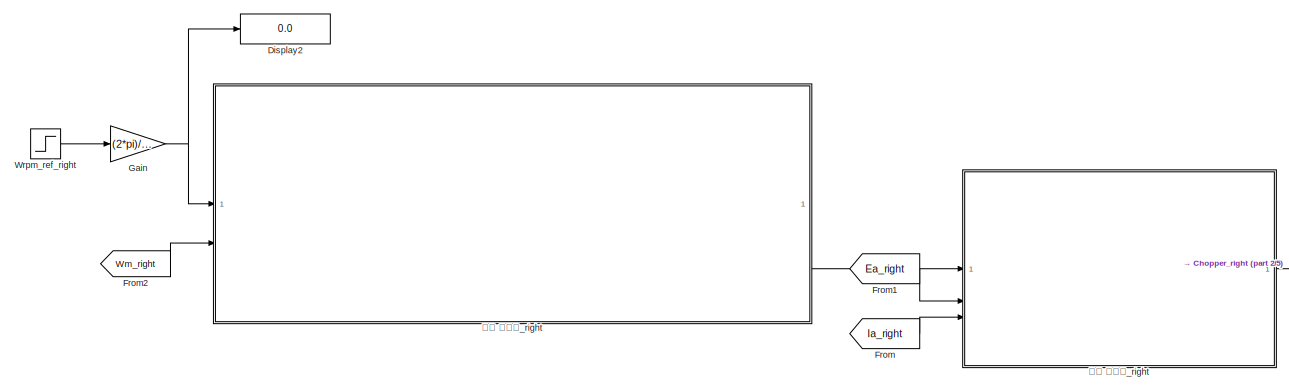
[diagram: root canvas - part 1/5, top left region]
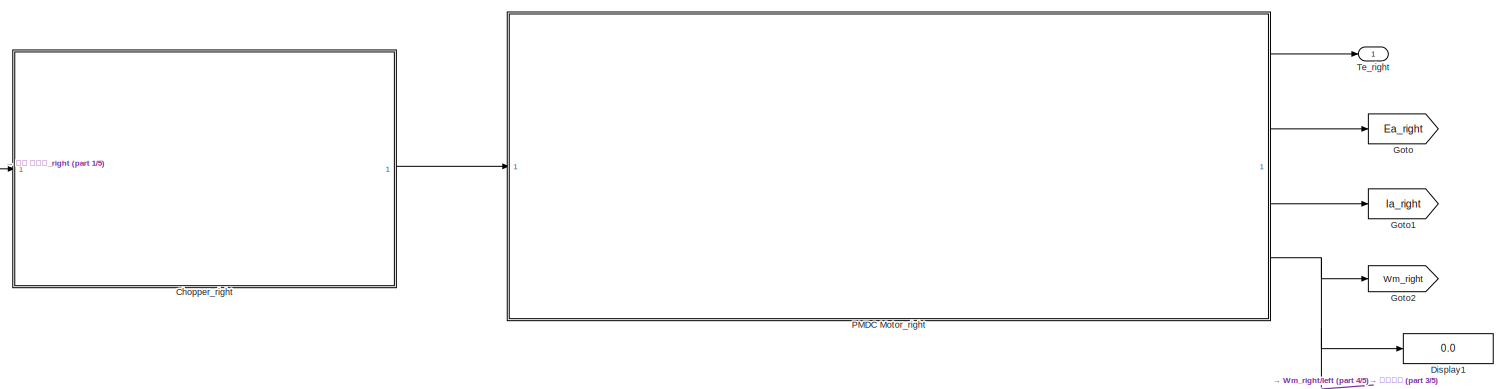
[diagram: root canvas - part 2/5, top center region]
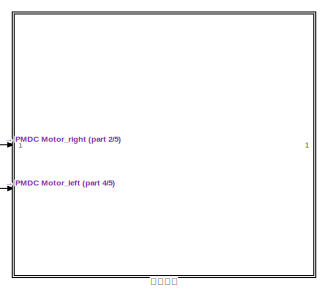
[diagram: root canvas - part 3/5, middle right region]
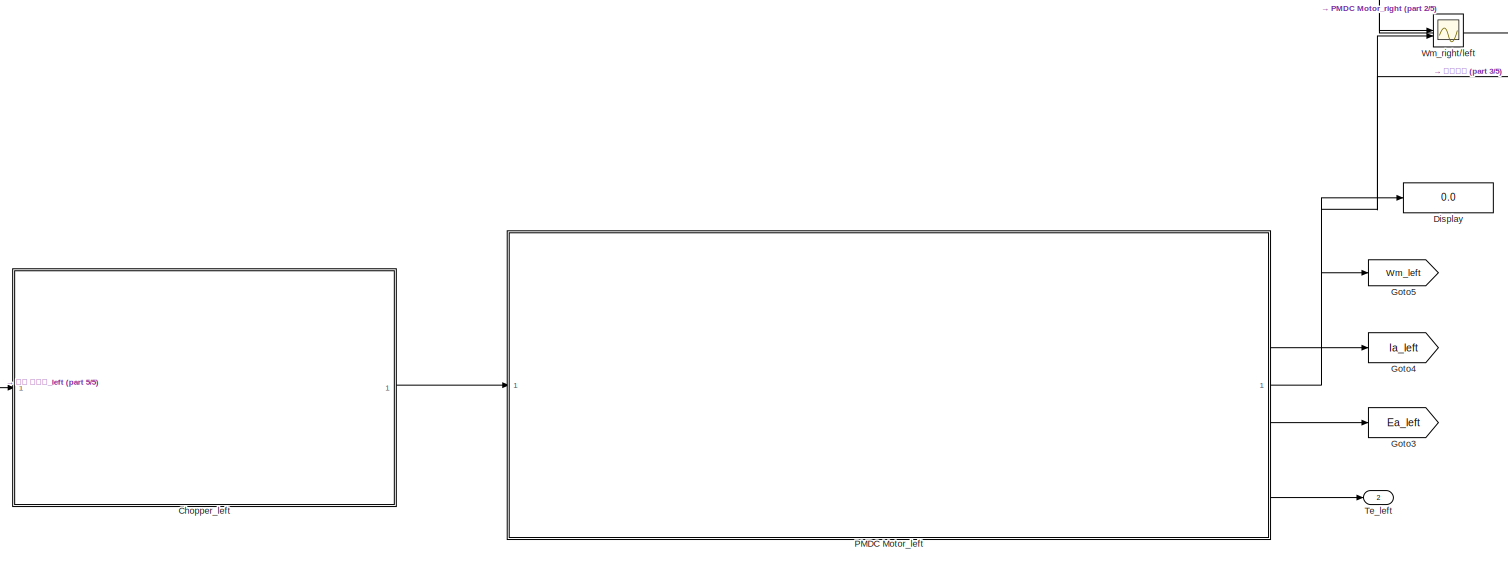
[diagram: root canvas - part 4/5, bottom center region]
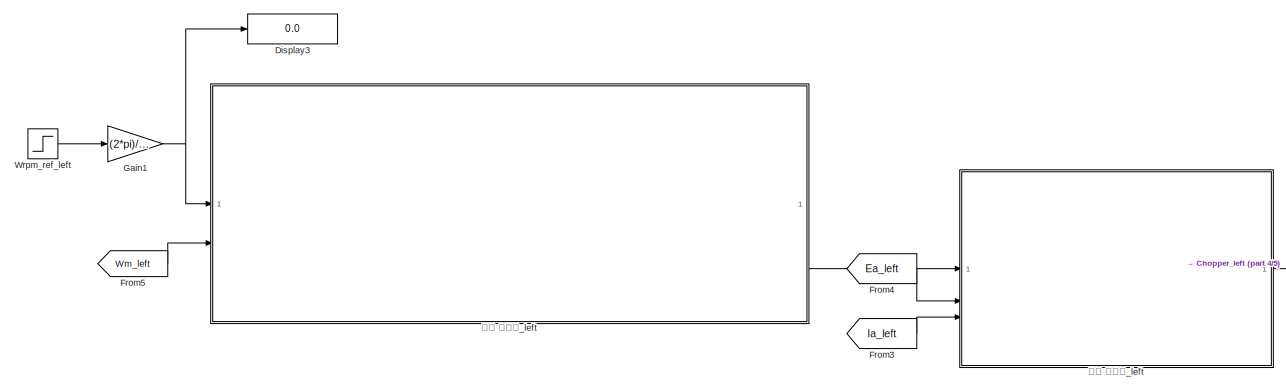
[diagram: root canvas - part 5/5, bottom left region]
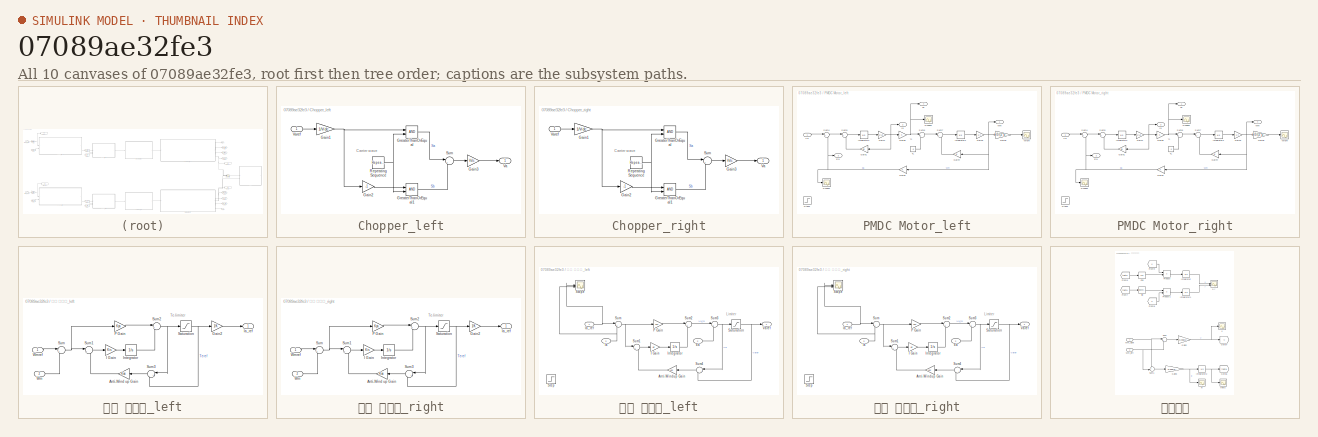
[diagram: thumbnail index - all 10 canvases of the model, root first then tree order]
MODEL slx_07089ae32fe3
KIND model
CONFIG AbsTol = auto
CONFIG EnableMultiTasking = off
CONFIG FixedStep = auto
CONFIG InitFcn = clear\nclc\n\nPower = 3336;\nVdc = 140;\nVa_rated = 140;\nIa_rated = 25;\nWm_rated = 3000*2*pi/60;\nTe_rated = Power/Wm_rated;\n\nRa = 0.26;\nLa = 1.7e-3;\nJ = 0.00252;\nB = 0;\n\nK = Te_rated/Ia_rated;\n\nWcc=500*2*pi;\nWcs=30*2*pi;\n\nKpc=La*Wcc;\nKic=Ra*Wcc;\nKac=1/Kpc;\n\nKps=(J*Wcs)/K;\nKis=(J*(Wcs)^2)/5*K;\nKas=1/Kps;\n
CONFIG MaxStep = auto
CONFIG MinStep = auto
CONFIG RelTol = 1e-4
CONFIG SampleTimeConstraint = Unconstrained
CONFIG SolverName = VariableStepAuto
CONFIG StartTime = 0.0
CONFIG StopTime = 0.2
BLOCK [SubSystem] Chopper_left
BLOCK [Gain] Chopper_left/Gain1
  Gain = 1/Vdc
BLOCK [Gain] Chopper_left/Gain2
  Gain = -1
BLOCK [Gain] Chopper_left/Gain3
  Gain = Vdc
BLOCK [RelationalOperator] Chopper_left/GreaterThanOrEqual
  InputSameDT = off
  OutDataTypeStr = boolean
  RndMeth = Simplest
BLOCK [RelationalOperator] Chopper_left/GreaterThanOrEqual1
  InputSameDT = off
  OutDataTypeStr = boolean
  RndMeth = Simplest
BLOCK [Reference] Chopper_left/Repeating Sequence  REF=simulink/Sources/Repeating
Sequence
  SourceBlock = simulink/Sources/Repeating\nSequence
  SourceType = Repeating table
BLOCK [Sum] Chopper_left/Sum
  Inputs = |+-
BLOCK [Outport] Chopper_left/Va
BLOCK [Inport] Chopper_left/Varef
BLOCK [SubSystem] Chopper_right
BLOCK [Gain] Chopper_right/Gain1
  Gain = 1/Vdc
BLOCK [Gain] Chopper_right/Gain2
  Gain = -1
BLOCK [Gain] Chopper_right/Gain3
  Gain = Vdc
BLOCK [RelationalOperator] Chopper_right/GreaterThanOrEqual
  InputSameDT = off
  OutDataTypeStr = boolean
  RndMeth = Simplest
BLOCK [RelationalOperator] Chopper_right/GreaterThanOrEqual1
  InputSameDT = off
  OutDataTypeStr = boolean
  RndMeth = Simplest
BLOCK [Reference] Chopper_right/Repeating Sequence  REF=simulink/Sources/Repeating
Sequence
  SourceBlock = simulink/Sources/Repeating\nSequence
  SourceType = Repeating table
BLOCK [Sum] Chopper_right/Sum
  Inputs = |+-
BLOCK [Outport] Chopper_right/Va
BLOCK [Inport] Chopper_right/Varef
BLOCK [Display] Display
  Decimation = 1
BLOCK [Display] Display1
  Decimation = 1
BLOCK [Display] Display2
  Decimation = 1
BLOCK [Display] Display3
  Decimation = 1
BLOCK [From] From
  GotoTag = Ia_right
BLOCK [From] From1
  GotoTag = Ea_right
BLOCK [From] From2
  GotoTag = Wm_right
BLOCK [From] From3
  GotoTag = Ia_left
BLOCK [From] From4
  GotoTag = Ea_left
BLOCK [From] From5
  GotoTag = Wm_left
BLOCK [Gain] Gain
  Gain = (2*pi)/60
BLOCK [Gain] Gain1
  Gain = (2*pi)/60
BLOCK [Goto] Goto
  GotoTag = Ea_right
BLOCK [Goto] Goto1
  GotoTag = Ia_right
BLOCK [Goto] Goto2
  GotoTag = Wm_right
BLOCK [Goto] Goto3
  GotoTag = Ea_left
BLOCK [Goto] Goto4
  GotoTag = Ia_left
BLOCK [Goto] Goto5
  GotoTag = Wm_left
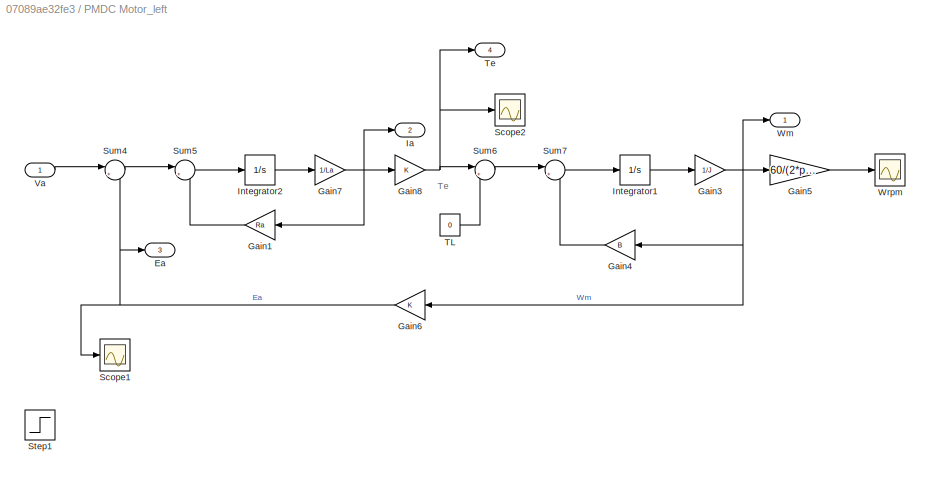
BLOCK [SubSystem] PMDC Motor_left
BLOCK [Outport] PMDC Motor_left/Ea
  Port = 3
BLOCK [Gain] PMDC Motor_left/Gain1
  Gain = Ra
  NameLocation = top
BLOCK [Gain] PMDC Motor_left/Gain3
  Gain = 1/J
BLOCK [Gain] PMDC Motor_left/Gain4
  Gain = B
  NameLocation = top
BLOCK [Gain] PMDC Motor_left/Gain5
  Gain = 60/(2*pi)
BLOCK [Gain] PMDC Motor_left/Gain6
  Gain = K
  NameLocation = top
BLOCK [Gain] PMDC Motor_left/Gain7
  Gain = 1/La
BLOCK [Gain] PMDC Motor_left/Gain8
  Gain = K
BLOCK [Outport] PMDC Motor_left/Ia
  Port = 2
BLOCK [Integrator] PMDC Motor_left/Integrator1
BLOCK [Integrator] PMDC Motor_left/Integrator2
BLOCK [Scope] PMDC Motor_left/Scope1
  Floating = off
  NumInputPorts = 1
  ScopeSpecificationString = Simulink.scopes.TimeScopeBlockCfg('CurrentConfiguration', extmgr.ConfigurationSet(extmgr.Configuration('Core','General UI',true),extmgr.Configuration('Core','Source UI',true),extmgr.Configuration('Sources','WiredSimulink',true,'DataLoggingVariableName','ScopeData2'),extmgr.Configuration('Visuals','Time Domain',true,'SerializedDisplays',{struct('MinYLimReal','-14.10394','MaxYLimReal','126.9355','YL...<+1456ch>
BLOCK [Scope] PMDC Motor_left/Scope2
  Floating = off
  NumInputPorts = 1
  ScopeSpecificationString = Simulink.scopes.TimeScopeBlockCfg('CurrentConfiguration', extmgr.ConfigurationSet(extmgr.Configuration('Core','General UI',true),extmgr.Configuration('Core','Source UI',true),extmgr.Configuration('Sources','WiredSimulink',true,'DataLoggingVariableName','ScopeData3'),extmgr.Configuration('Visuals','Time Domain',true,'SerializedDisplays',{struct('MinYLimReal','-4.21462','MaxYLimReal','17.83937','YLa...<+1457ch>
BLOCK [Step] PMDC Motor_left/Step1
  After = 70
  SampleTime = 0
  Time = 0.05
BLOCK [Sum] PMDC Motor_left/Sum4
  Inputs = |+-
BLOCK [Sum] PMDC Motor_left/Sum5
  Inputs = |+-
BLOCK [Sum] PMDC Motor_left/Sum6
  Inputs = |+-
BLOCK [Sum] PMDC Motor_left/Sum7
  Inputs = |+-
BLOCK [Constant] PMDC Motor_left/TL
  Value = 0
BLOCK [Outport] PMDC Motor_left/Te
  Port = 4
BLOCK [Inport] PMDC Motor_left/Va
BLOCK [Outport] PMDC Motor_left/Wm
BLOCK [Scope] PMDC Motor_left/Wrpm
  Floating = off
  NumInputPorts = 1
  ScopeSpecificationString = Simulink.scopes.TimeScopeBlockCfg('CurrentConfiguration', extmgr.ConfigurationSet(extmgr.Configuration('Core','General UI',true),extmgr.Configuration('Core','Source UI',true),extmgr.Configuration('Sources','WiredSimulink',true),extmgr.Configuration('Visuals','Time Domain',true,'SerializedDisplays',{struct('MinYLimReal','-317.08508','MaxYLimReal','2853.76572','YLabelReal','','MinYLimMag',' 0.00000'...<+1464ch>
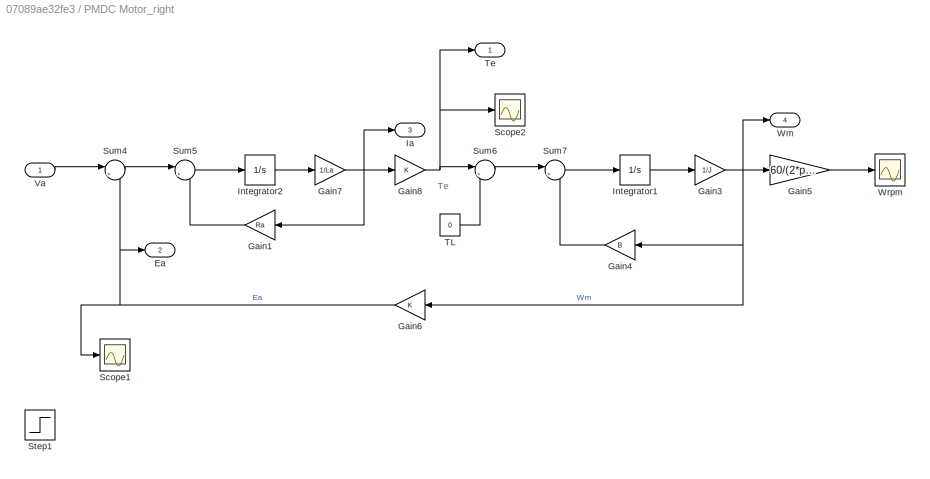
BLOCK [SubSystem] PMDC Motor_right
BLOCK [Outport] PMDC Motor_right/Ea
  Port = 2
BLOCK [Gain] PMDC Motor_right/Gain1
  Gain = Ra
  NameLocation = top
BLOCK [Gain] PMDC Motor_right/Gain3
  Gain = 1/J
BLOCK [Gain] PMDC Motor_right/Gain4
  Gain = B
  NameLocation = top
BLOCK [Gain] PMDC Motor_right/Gain5
  Gain = 60/(2*pi)
BLOCK [Gain] PMDC Motor_right/Gain6
  Gain = K
  NameLocation = top
BLOCK [Gain] PMDC Motor_right/Gain7
  Gain = 1/La
BLOCK [Gain] PMDC Motor_right/Gain8
  Gain = K
BLOCK [Outport] PMDC Motor_right/Ia
  Port = 3
BLOCK [Integrator] PMDC Motor_right/Integrator1
BLOCK [Integrator] PMDC Motor_right/Integrator2
BLOCK [Scope] PMDC Motor_right/Scope1
  Floating = off
  NumInputPorts = 1
  ScopeSpecificationString = Simulink.scopes.TimeScopeBlockCfg('CurrentConfiguration', extmgr.ConfigurationSet(extmgr.Configuration('Core','General UI',true),extmgr.Configuration('Core','Source UI',true),extmgr.Configuration('Sources','WiredSimulink',true,'DataLoggingVariableName','ScopeData2'),extmgr.Configuration('Visuals','Time Domain',true,'SerializedDisplays',{struct('MinYLimReal','-14.10394','MaxYLimReal','126.9355','YL...<+1456ch>
BLOCK [Scope] PMDC Motor_right/Scope2
  Floating = off
  NumInputPorts = 1
  ScopeSpecificationString = Simulink.scopes.TimeScopeBlockCfg('CurrentConfiguration', extmgr.ConfigurationSet(extmgr.Configuration('Core','General UI',true),extmgr.Configuration('Core','Source UI',true),extmgr.Configuration('Sources','WiredSimulink',true,'DataLoggingVariableName','ScopeData3'),extmgr.Configuration('Visuals','Time Domain',true,'SerializedDisplays',{struct('MinYLimReal','-4.21462','MaxYLimReal','17.83937','YLa...<+1457ch>
BLOCK [Step] PMDC Motor_right/Step1
  After = 70
  SampleTime = 0
  Time = 0.05
BLOCK [Sum] PMDC Motor_right/Sum4
  Inputs = |+-
BLOCK [Sum] PMDC Motor_right/Sum5
  Inputs = |+-
BLOCK [Sum] PMDC Motor_right/Sum6
  Inputs = |+-
BLOCK [Sum] PMDC Motor_right/Sum7
  Inputs = |+-
BLOCK [Constant] PMDC Motor_right/TL
  Value = 0
BLOCK [Outport] PMDC Motor_right/Te
BLOCK [Inport] PMDC Motor_right/Va
BLOCK [Outport] PMDC Motor_right/Wm
  Port = 4
BLOCK [Scope] PMDC Motor_right/Wrpm
  Floating = off
  NumInputPorts = 1
  ScopeSpecificationString = Simulink.scopes.TimeScopeBlockCfg('CurrentConfiguration', extmgr.ConfigurationSet(extmgr.Configuration('Core','General UI',true),extmgr.Configuration('Core','Source UI',true),extmgr.Configuration('Sources','WiredSimulink',true),extmgr.Configuration('Visuals','Time Domain',true,'SerializedDisplays',{struct('MinYLimReal','-317.08508','MaxYLimReal','2853.76572','YLabelReal','','MinYLimMag',' 0.00000'...<+1464ch>
BLOCK [Outport] Te_left
  Port = 2
BLOCK [Outport] Te_right
BLOCK [Scope] Wm_right//left
  Floating = off
  NumInputPorts = 2
  ScopeSpecificationString = Simulink.scopes.TimeScopeBlockCfg('CurrentConfiguration', extmgr.ConfigurationSet(extmgr.Configuration('Core','General UI',true),extmgr.Configuration('Core','Source UI',true),extmgr.Configuration('Sources','WiredSimulink',true,'DataLoggingVariableName','ScopeData5'),extmgr.Configuration('Visuals','Time Domain',true,'SerializedDisplays',{struct('MinYLimReal','-33.16616','MaxYLimReal','298.49544','Y...<+1527ch>
BLOCK [Step] Wrpm_ref_left
  After = 2500
  SampleTime = 0
  Time = 0.05
BLOCK [Step] Wrpm_ref_right
  After = 2500
  SampleTime = 0
  Time = 0.05
BLOCK [SubSystem] 속도 제어기_left
BLOCK [Gain] 속도 제어기_left/Anti-Wind up Gain
  Gain = Kas
BLOCK [Gain] 속도 제어기_left/Gain2
  Gain = 1/K
BLOCK [Gain] 속도 제어기_left/I Gain
  Gain = Kis
BLOCK [Outport] 속도 제어기_left/Ia_ref
BLOCK [Integrator] 속도 제어기_left/Integrator
BLOCK [Gain] 속도 제어기_left/P Gain
  Gain = Kps
BLOCK [Saturate] 속도 제어기_left/Saturation
  LowerLimit = -Te_rated
  UpperLimit = Te_rated
BLOCK [Sum] 속도 제어기_left/Sum
  Inputs = |+-
BLOCK [Sum] 속도 제어기_left/Sum1
  Inputs = |+-
BLOCK [Sum] 속도 제어기_left/Sum2
  Inputs = |++
  NameLocation = top
BLOCK [Sum] 속도 제어기_left/Sum3
  Inputs = |+-
  NameLocation = top
BLOCK [Inport] 속도 제어기_left/Wm
  Port = 2
BLOCK [Inport] 속도 제어기_left/Wmref
BLOCK [SubSystem] 속도 제어기_right
BLOCK [Gain] 속도 제어기_right/Anti-Wind up Gain
  Gain = Kas
BLOCK [Gain] 속도 제어기_right/Gain2
  Gain = 1/K
BLOCK [Gain] 속도 제어기_right/I Gain
  Gain = Kis
BLOCK [Outport] 속도 제어기_right/Ia_ref
BLOCK [Integrator] 속도 제어기_right/Integrator
BLOCK [Gain] 속도 제어기_right/P Gain
  Gain = Kps
BLOCK [Saturate] 속도 제어기_right/Saturation
  LowerLimit = -Te_rated
  UpperLimit = Te_rated
BLOCK [Sum] 속도 제어기_right/Sum
  Inputs = |+-
BLOCK [Sum] 속도 제어기_right/Sum1
  Inputs = |+-
BLOCK [Sum] 속도 제어기_right/Sum2
  Inputs = |++
  NameLocation = top
BLOCK [Sum] 속도 제어기_right/Sum3
  Inputs = |+-
  NameLocation = top
BLOCK [Inport] 속도 제어기_right/Wm
  Port = 2
BLOCK [Inport] 속도 제어기_right/Wmref
BLOCK [SubSystem] 전류 제어기_left
BLOCK [Gain] 전류 제어기_left/Anti-Windup Gain
  Gain = Kac
BLOCK [Inport] 전류 제어기_left/Ea
  Port = 2
BLOCK [Gain] 전류 제어기_left/I Gain
  Gain = Kic
BLOCK [Inport] 전류 제어기_left/Ia
  Port = 3
BLOCK [Inport] 전류 제어기_left/Ia_ref
BLOCK [Integrator] 전류 제어기_left/Integrator
BLOCK [Gain] 전류 제어기_left/P Gain
  Gain = Kpc
BLOCK [Saturate] 전류 제어기_left/Saturation
  LowerLimit = -Va_rated
  OutMax = [140]
  UpperLimit = Va_rated
BLOCK [Scope] 전류 제어기_left/Scope
  Floating = off
  NumInputPorts = 2
  ScopeSpecificationString = Simulink.scopes.TimeScopeBlockCfg('CurrentConfiguration', extmgr.ConfigurationSet(extmgr.Configuration('Core','General UI',true),extmgr.Configuration('Core','Source UI',true),extmgr.Configuration('Sources','WiredSimulink',true,'DataLoggingVariableName','ScopeData1'),extmgr.Configuration('Visuals','Time Domain',true,'SerializedDisplays',{struct('MinYLimReal','-9.92252','MaxYLimReal','41.99942','YLa...<+1490ch>
BLOCK [Step] 전류 제어기_left/Step
  After = 20
  SampleTime = 0
  Time = 0.005
BLOCK [Sum] 전류 제어기_left/Sum
  Inputs = |+-
BLOCK [Sum] 전류 제어기_left/Sum1
  Inputs = |+-
BLOCK [Sum] 전류 제어기_left/Sum2
  Inputs = |++
BLOCK [Sum] 전류 제어기_left/Sum3
  Inputs = |++
BLOCK [Sum] 전류 제어기_left/Sum4
  Inputs = |+-
BLOCK [Outport] 전류 제어기_left/Varef
BLOCK [SubSystem] 전류 제어기_right
BLOCK [Gain] 전류 제어기_right/Anti-Windup Gain
  Gain = Kac
BLOCK [Inport] 전류 제어기_right/Ea
  Port = 2
BLOCK [Gain] 전류 제어기_right/I Gain
  Gain = Kic
BLOCK [Inport] 전류 제어기_right/Ia
  Port = 3
BLOCK [Inport] 전류 제어기_right/Ia_ref
BLOCK [Integrator] 전류 제어기_right/Integrator
BLOCK [Gain] 전류 제어기_right/P Gain
  Gain = Kpc
BLOCK [Saturate] 전류 제어기_right/Saturation
  LowerLimit = -Va_rated
  OutMax = [140]
  UpperLimit = Va_rated
BLOCK [Scope] 전류 제어기_right/Scope
  Floating = off
  NumInputPorts = 2
  ScopeSpecificationString = Simulink.scopes.TimeScopeBlockCfg('CurrentConfiguration', extmgr.ConfigurationSet(extmgr.Configuration('Core','General UI',true),extmgr.Configuration('Core','Source UI',true),extmgr.Configuration('Sources','WiredSimulink',true,'DataLoggingVariableName','ScopeData1'),extmgr.Configuration('Visuals','Time Domain',true,'SerializedDisplays',{struct('MinYLimReal','-9.92252','MaxYLimReal','41.99942','YLa...<+1490ch>
BLOCK [Step] 전류 제어기_right/Step
  After = 20
  SampleTime = 0
  Time = 0.005
BLOCK [Sum] 전류 제어기_right/Sum
  Inputs = |+-
BLOCK [Sum] 전류 제어기_right/Sum1
  Inputs = |+-
BLOCK [Sum] 전류 제어기_right/Sum2
  Inputs = |++
BLOCK [Sum] 전류 제어기_right/Sum3
  Inputs = |++
BLOCK [Sum] 전류 제어기_right/Sum4
  Inputs = |+-
BLOCK [Outport] 전류 제어기_right/Varef
BLOCK [SubSystem] 차동구동
BLOCK [Trigonometry] 차동구동/Cos
  Operator = cos
BLOCK [From] 차동구동/From6
  GotoTag = theta
BLOCK [From] 차동구동/From7
  GotoTag = theta
BLOCK [From] 차동구동/From8
  GotoTag = V
BLOCK [From] 차동구동/From9
  GotoTag = V
BLOCK [Gain] 차동구동/Gain2
  Gain = 0.033/2
BLOCK [Gain] 차동구동/Gain3
  Gain = 0.033/0.15
BLOCK [Goto] 차동구동/Goto6
  GotoTag = theta
BLOCK [Goto] 차동구동/Goto7
  GotoTag = V
BLOCK [Integrator] 차동구동/Integrator
BLOCK [Integrator] 차동구동/Integrator1
BLOCK [Integrator] 차동구동/Integrator2
BLOCK [Product] 차동구동/Product
BLOCK [Product] 차동구동/Product1
BLOCK [Trigonometry] 차동구동/Sin
BLOCK [Sum] 차동구동/Sum
  Inputs = |++
BLOCK [Sum] 차동구동/Sum1
  Inputs = +-|
BLOCK [Scope] 차동구동/V
  Floating = off
  NumInputPorts = 1
  ScopeSpecificationString = Simulink.scopes.TimeScopeBlockCfg('CurrentConfiguration', extmgr.ConfigurationSet(extmgr.Configuration('Core','General UI',true),extmgr.Configuration('Core','Source UI',true),extmgr.Configuration('Sources','WiredSimulink',true,'DataLoggingVariableName','ScopeData4'),extmgr.Configuration('Visuals','Time Domain',true),extmgr.Configuration('Tools','Plot Navigation',true),extmgr.Configuration('Tools',...<+40ch>
BLOCK [Inport] 차동구동/Wm_left
  Port = 2
BLOCK [Inport] 차동구동/Wm_right
BLOCK [Scope] 차동구동/theta
  Floating = off
  NumInputPorts = 1
  ScopeSpecificationString = Simulink.scopes.TimeScopeBlockCfg('CurrentConfiguration', extmgr.ConfigurationSet(extmgr.Configuration('Core','General UI',true),extmgr.Configuration('Core','Source UI',true),extmgr.Configuration('Sources','WiredSimulink',true,'DataLoggingVariableName','ScopeData3'),extmgr.Configuration('Visuals','Time Domain',true),extmgr.Configuration('Tools','Plot Navigation',true),extmgr.Configuration('Tools',...<+40ch>
BLOCK [Scope] 차동구동/w
  Floating = off
  NumInputPorts = 1
  ScopeSpecificationString = Simulink.scopes.TimeScopeBlockCfg('CurrentConfiguration', extmgr.ConfigurationSet(extmgr.Configuration('Core','General UI',true),extmgr.Configuration('Core','Source UI',true),extmgr.Configuration('Sources','WiredSimulink',true,'DataLoggingVariableName','ScopeData2'),extmgr.Configuration('Visuals','Time Domain',true,'SerializedDisplays',{struct('MinYLimReal','-1.00000','MaxYLimReal','1.00000','YLab...<+1449ch>
BLOCK [Scope] 차동구동/x,y
  Floating = off
  NumInputPorts = 2
  ScopeSpecificationString = Simulink.scopes.TimeScopeBlockCfg('CurrentConfiguration', extmgr.ConfigurationSet(extmgr.Configuration('Core','General UI',true),extmgr.Configuration('Core','Source UI',true),extmgr.Configuration('Sources','WiredSimulink',true,'DataLoggingVariableName','ScopeData1'),extmgr.Configuration('Visuals','Time Domain',true),extmgr.Configuration('Tools','Plot Navigation',true),extmgr.Configuration('Tools',...<+40ch>
ANNOTATION Chopper_left: Carrier wave
ANNOTATION Chopper_right: Carrier wave
ANNOTATION PMDC Motor_left: Te
ANNOTATION PMDC Motor_right: Te
ANNOTATION 속도 제어기_left: Te-limiter
ANNOTATION 속도 제어기_right: Te-limiter
ANNOTATION 전류 제어기_left: Limiter
ANNOTATION 전류 제어기_right: Limiter
NET Chopper_left/Gain1:1 -> Chopper_left/Gain2:1, Chopper_left/GreaterThanOrEqual:1
LINE Chopper_left/Gain2:1 -> Chopper_left/GreaterThanOrEqual1:1
LINE Chopper_left/Gain3:1 -> Chopper_left/Va:1
LINE Chopper_left/GreaterThanOrEqual1:1 -> Chopper_left/Sum:2
LINE Chopper_left/GreaterThanOrEqual:1 -> Chopper_left/Sum:1
NET Chopper_left/Repeating Sequence:1 -> Chopper_left/GreaterThanOrEqual1:2, Chopper_left/GreaterThanOrEqual:2
LINE Chopper_left/Sum:1 -> Chopper_left/Gain3:1
LINE Chopper_left/Varef:1 -> Chopper_left/Gain1:1
LINE Chopper_left:1 -> PMDC Motor_left:1
NET Chopper_right/Gain1:1 -> Chopper_right/Gain2:1, Chopper_right/GreaterThanOrEqual:1
LINE Chopper_right/Gain2:1 -> Chopper_right/GreaterThanOrEqual1:1
LINE Chopper_right/Gain3:1 -> Chopper_right/Va:1
LINE Chopper_right/GreaterThanOrEqual1:1 -> Chopper_right/Sum:2
LINE Chopper_right/GreaterThanOrEqual:1 -> Chopper_right/Sum:1
NET Chopper_right/Repeating Sequence:1 -> Chopper_right/GreaterThanOrEqual1:2, Chopper_right/GreaterThanOrEqual:2
LINE Chopper_right/Sum:1 -> Chopper_right/Gain3:1
LINE Chopper_right/Varef:1 -> Chopper_right/Gain1:1
LINE Chopper_right:1 -> PMDC Motor_right:1
LINE From1:1 -> 전류 제어기_right:2
LINE From2:1 -> 속도 제어기_right:2
LINE From3:1 -> 전류 제어기_left:3
LINE From4:1 -> 전류 제어기_left:2
LINE From5:1 -> 속도 제어기_left:2
LINE From:1 -> 전류 제어기_right:3
NET Gain1:1 -> Display3:1, 속도 제어기_left:1
NET Gain:1 -> Display2:1, 속도 제어기_right:1
LINE PMDC Motor_left/Gain1:1 -> PMDC Motor_left/Sum5:2
NET PMDC Motor_left/Gain3:1 -> PMDC Motor_left/Gain4:1, PMDC Motor_left/Gain5:1, PMDC Motor_left/Gain6:1, PMDC Motor_left/Wm:1
LINE PMDC Motor_left/Gain4:1 -> PMDC Motor_left/Sum7:2
LINE PMDC Motor_left/Gain5:1 -> PMDC Motor_left/Wrpm:1
NET PMDC Motor_left/Gain6:1 -> PMDC Motor_left/Ea:1, PMDC Motor_left/Scope1:1, PMDC Motor_left/Sum4:2
NET PMDC Motor_left/Gain7:1 -> PMDC Motor_left/Gain1:1, PMDC Motor_left/Gain8:1, PMDC Motor_left/Ia:1
NET PMDC Motor_left/Gain8:1 -> PMDC Motor_left/Scope2:1, PMDC Motor_left/Sum6:1, PMDC Motor_left/Te:1
LINE PMDC Motor_left/Integrator1:1 -> PMDC Motor_left/Gain3:1
LINE PMDC Motor_left/Integrator2:1 -> PMDC Motor_left/Gain7:1
LINE PMDC Motor_left/Sum4:1 -> PMDC Motor_left/Sum5:1
LINE PMDC Motor_left/Sum5:1 -> PMDC Motor_left/Integrator2:1
LINE PMDC Motor_left/Sum6:1 -> PMDC Motor_left/Sum7:1
LINE PMDC Motor_left/Sum7:1 -> PMDC Motor_left/Integrator1:1
LINE PMDC Motor_left/TL:1 -> PMDC Motor_left/Sum6:2
LINE PMDC Motor_left/Va:1 -> PMDC Motor_left/Sum4:1
NET PMDC Motor_left:1 -> Display:1, Goto5:1, Wm_right//left:2, 차동구동:2
LINE PMDC Motor_left:2 -> Goto4:1
LINE PMDC Motor_left:3 -> Goto3:1
LINE PMDC Motor_left:4 -> Te_left:1
LINE PMDC Motor_right/Gain1:1 -> PMDC Motor_right/Sum5:2
NET PMDC Motor_right/Gain3:1 -> PMDC Motor_right/Gain4:1, PMDC Motor_right/Gain5:1, PMDC Motor_right/Gain6:1, PMDC Motor_right/Wm:1
LINE PMDC Motor_right/Gain4:1 -> PMDC Motor_right/Sum7:2
LINE PMDC Motor_right/Gain5:1 -> PMDC Motor_right/Wrpm:1
NET PMDC Motor_right/Gain6:1 -> PMDC Motor_right/Ea:1, PMDC Motor_right/Scope1:1, PMDC Motor_right/Sum4:2
NET PMDC Motor_right/Gain7:1 -> PMDC Motor_right/Gain1:1, PMDC Motor_right/Gain8:1, PMDC Motor_right/Ia:1
NET PMDC Motor_right/Gain8:1 -> PMDC Motor_right/Scope2:1, PMDC Motor_right/Sum6:1, PMDC Motor_right/Te:1
LINE PMDC Motor_right/Integrator1:1 -> PMDC Motor_right/Gain3:1
LINE PMDC Motor_right/Integrator2:1 -> PMDC Motor_right/Gain7:1
LINE PMDC Motor_right/Sum4:1 -> PMDC Motor_right/Sum5:1
LINE PMDC Motor_right/Sum5:1 -> PMDC Motor_right/Integrator2:1
LINE PMDC Motor_right/Sum6:1 -> PMDC Motor_right/Sum7:1
LINE PMDC Motor_right/Sum7:1 -> PMDC Motor_right/Integrator1:1
LINE PMDC Motor_right/TL:1 -> PMDC Motor_right/Sum6:2
LINE PMDC Motor_right/Va:1 -> PMDC Motor_right/Sum4:1
LINE PMDC Motor_right:1 -> Te_right:1
LINE PMDC Motor_right:2 -> Goto:1
LINE PMDC Motor_right:3 -> Goto1:1
NET PMDC Motor_right:4 -> Display1:1, Goto2:1, Wm_right//left:1, 차동구동:1
LINE Wrpm_ref_left:1 -> Gain1:1
LINE Wrpm_ref_right:1 -> Gain:1
LINE 속도 제어기_left/Anti-Wind up Gain:1 -> 속도 제어기_left/Sum1:2
LINE 속도 제어기_left/Gain2:1 -> 속도 제어기_left/Ia_ref:1
LINE 속도 제어기_left/I Gain:1 -> 속도 제어기_left/Integrator:1
LINE 속도 제어기_left/Integrator:1 -> 속도 제어기_left/Sum2:2
LINE 속도 제어기_left/P Gain:1 -> 속도 제어기_left/Sum2:1
NET 속도 제어기_left/Saturation:1 -> 속도 제어기_left/Gain2:1, 속도 제어기_left/Sum3:2
LINE 속도 제어기_left/Sum1:1 -> 속도 제어기_left/I Gain:1
NET 속도 제어기_left/Sum2:1 -> 속도 제어기_left/Saturation:1, 속도 제어기_left/Sum3:1
LINE 속도 제어기_left/Sum3:1 -> 속도 제어기_left/Anti-Wind up Gain:1
NET 속도 제어기_left/Sum:1 -> 속도 제어기_left/P Gain:1, 속도 제어기_left/Sum1:1
LINE 속도 제어기_left/Wm:1 -> 속도 제어기_left/Sum:2
LINE 속도 제어기_left/Wmref:1 -> 속도 제어기_left/Sum:1
LINE 속도 제어기_left:1 -> 전류 제어기_left:1
LINE 속도 제어기_right/Anti-Wind up Gain:1 -> 속도 제어기_right/Sum1:2
LINE 속도 제어기_right/Gain2:1 -> 속도 제어기_right/Ia_ref:1
LINE 속도 제어기_right/I Gain:1 -> 속도 제어기_right/Integrator:1
LINE 속도 제어기_right/Integrator:1 -> 속도 제어기_right/Sum2:2
LINE 속도 제어기_right/P Gain:1 -> 속도 제어기_right/Sum2:1
NET 속도 제어기_right/Saturation:1 -> 속도 제어기_right/Gain2:1, 속도 제어기_right/Sum3:2
LINE 속도 제어기_right/Sum1:1 -> 속도 제어기_right/I Gain:1
NET 속도 제어기_right/Sum2:1 -> 속도 제어기_right/Saturation:1, 속도 제어기_right/Sum3:1
LINE 속도 제어기_right/Sum3:1 -> 속도 제어기_right/Anti-Wind up Gain:1
NET 속도 제어기_right/Sum:1 -> 속도 제어기_right/P Gain:1, 속도 제어기_right/Sum1:1
LINE 속도 제어기_right/Wm:1 -> 속도 제어기_right/Sum:2
LINE 속도 제어기_right/Wmref:1 -> 속도 제어기_right/Sum:1
LINE 속도 제어기_right:1 -> 전류 제어기_right:1
LINE 전류 제어기_left/Anti-Windup Gain:1 -> 전류 제어기_left/Sum1:2
LINE 전류 제어기_left/Ea:1 -> 전류 제어기_left/Sum3:2
LINE 전류 제어기_left/I Gain:1 -> 전류 제어기_left/Integrator:1
NET 전류 제어기_left/Ia:1 -> 전류 제어기_left/Scope:2, 전류 제어기_left/Sum:2
NET 전류 제어기_left/Ia_ref:1 -> 전류 제어기_left/Scope:1, 전류 제어기_left/Sum:1
LINE 전류 제어기_left/Integrator:1 -> 전류 제어기_left/Sum2:2
LINE 전류 제어기_left/P Gain:1 -> 전류 제어기_left/Sum2:1
NET 전류 제어기_left/Saturation:1 -> 전류 제어기_left/Sum4:2, 전류 제어기_left/Varef:1
LINE 전류 제어기_left/Sum1:1 -> 전류 제어기_left/I Gain:1
LINE 전류 제어기_left/Sum2:1 -> 전류 제어기_left/Sum3:1
NET 전류 제어기_left/Sum3:1 -> 전류 제어기_left/Saturation:1, 전류 제어기_left/Sum4:1
LINE 전류 제어기_left/Sum4:1 -> 전류 제어기_left/Anti-Windup Gain:1
NET 전류 제어기_left/Sum:1 -> 전류 제어기_left/P Gain:1, 전류 제어기_left/Sum1:1
LINE 전류 제어기_left:1 -> Chopper_left:1
LINE 전류 제어기_right/Anti-Windup Gain:1 -> 전류 제어기_right/Sum1:2
LINE 전류 제어기_right/Ea:1 -> 전류 제어기_right/Sum3:2
LINE 전류 제어기_right/I Gain:1 -> 전류 제어기_right/Integrator:1
NET 전류 제어기_right/Ia:1 -> 전류 제어기_right/Scope:2, 전류 제어기_right/Sum:2
NET 전류 제어기_right/Ia_ref:1 -> 전류 제어기_right/Scope:1, 전류 제어기_right/Sum:1
LINE 전류 제어기_right/Integrator:1 -> 전류 제어기_right/Sum2:2
LINE 전류 제어기_right/P Gain:1 -> 전류 제어기_right/Sum2:1
NET 전류 제어기_right/Saturation:1 -> 전류 제어기_right/Sum4:2, 전류 제어기_right/Varef:1
LINE 전류 제어기_right/Sum1:1 -> 전류 제어기_right/I Gain:1
LINE 전류 제어기_right/Sum2:1 -> 전류 제어기_right/Sum3:1
NET 전류 제어기_right/Sum3:1 -> 전류 제어기_right/Saturation:1, 전류 제어기_right/Sum4:1
LINE 전류 제어기_right/Sum4:1 -> 전류 제어기_right/Anti-Windup Gain:1
NET 전류 제어기_right/Sum:1 -> 전류 제어기_right/P Gain:1, 전류 제어기_right/Sum1:1
LINE 전류 제어기_right:1 -> Chopper_right:1
LINE 차동구동/Cos:1 -> 차동구동/Product:2
LINE 차동구동/From6:1 -> 차동구동/Cos:1
LINE 차동구동/From7:1 -> 차동구동/Sin:1
LINE 차동구동/From8:1 -> 차동구동/Product1:2
LINE 차동구동/From9:1 -> 차동구동/Product:1
NET 차동구동/Gain2:1 -> 차동구동/Goto7:1, 차동구동/V:1
NET 차동구동/Gain3:1 -> 차동구동/Integrator2:1, 차동구동/w:1
LINE 차동구동/Integrator1:1 -> 차동구동/x,y:2
NET 차동구동/Integrator2:1 -> 차동구동/Goto6:1, 차동구동/theta:1
LINE 차동구동/Integrator:1 -> 차동구동/x,y:1
LINE 차동구동/Product1:1 -> 차동구동/Integrator1:1
LINE 차동구동/Product:1 -> 차동구동/Integrator:1
LINE 차동구동/Sin:1 -> 차동구동/Product1:1
LINE 차동구동/Sum1:1 -> 차동구동/Gain3:1
LINE 차동구동/Sum:1 -> 차동구동/Gain2:1
NET 차동구동/Wm_left:1 -> 차동구동/Sum1:2, 차동구동/Sum:2
NET 차동구동/Wm_right:1 -> 차동구동/Sum1:1, 차동구동/Sum:1
note: NET lines group one-source signal fan-out (src -> all destinations, sorted); 1:1 wires keep LINE
